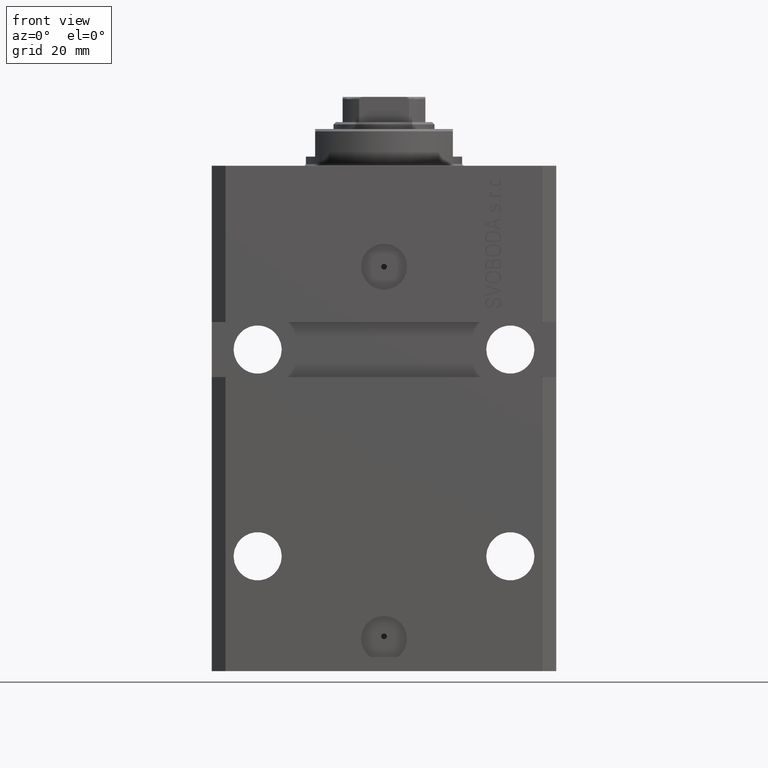
[diagram: clean part render]
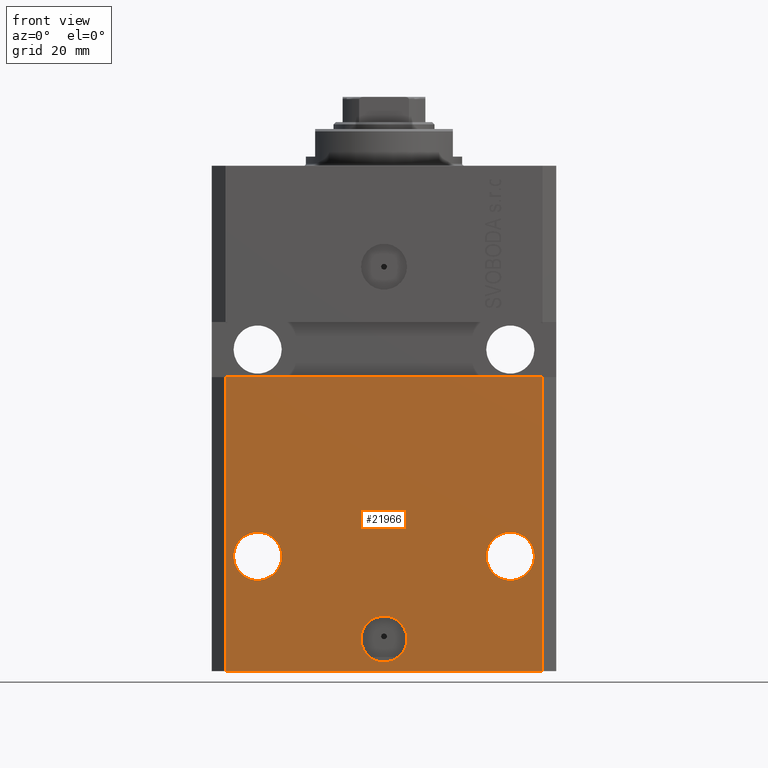
[diagram: same view with one face highlighted and labeled with its STEP entity id]
A machine part, front view. The second image highlights one B-rep face of the part: STEP entity #21966.
In plain terms, the highlighted planar face has unit normal (0, -1, 0).
Its self-contained STEP definition (entity closure, byte-faithful):
#1127 = CARTESIAN_POINT ( 'NONE',  ( 34.49999999999999289, -27.49999999999999645, -110.0000000000000000 ) ) ;
#1305 = EDGE_CURVE ( 'NONE', #7706, #33739, #4298, .T. ) ;
#2982 = EDGE_CURVE ( 'NONE', #16151, #41742, #40841, .T. ) ;
#3512 = CIRCLE ( 'NONE', #9687, 5.000000000000006217 ) ;
#4298 = LINE ( 'NONE', #7446, #38506 ) ;
#5130 = DIRECTION ( 'NONE',  ( 1.000000000000000000, 0.000000000000000000, 0.000000000000000000 ) ) ;
#5263 = AXIS2_PLACEMENT_3D ( 'NONE', #25104, #47135, #13948 ) ;
#5278 = CARTESIAN_POINT ( 'NONE',  ( -34.49999999999998579, -27.49999999999999645, -110.0000000000000000 ) ) ;
#5281 = EDGE_CURVE ( 'NONE', #46552, #11103, #43235, .T. ) ;
#5511 = DIRECTION ( 'NONE',  ( 0.000000000000000000, -0.000000000000000000, -1.000000000000000000 ) ) ;
#5534 = ORIENTED_EDGE ( 'NONE', *, *, #6598, .F. ) ;
#6596 = DIRECTION ( 'NONE',  ( 1.000000000000000000, 0.000000000000000000, 0.000000000000000000 ) ) ;
#6598 = EDGE_CURVE ( 'NONE', #43194, #17385, #13160, .T. ) ;
#7194 = EDGE_CURVE ( 'NONE', #41742, #33739, #31758, .T. ) ;
#7446 = CARTESIAN_POINT ( 'NONE',  ( -37.50000000000000000, -27.50000000000000000, -46.00000000000000000 ) ) ;
#7670 = CARTESIAN_POINT ( 'NONE',  ( -34.49999999999998579, -27.49999999999999645, -110.0000000000000000 ) ) ;
#7706 = VERTEX_POINT ( 'NONE', #40997 ) ;
#8498 = LINE ( 'NONE', #30529, #26517 ) ;
#8903 = FACE_BOUND ( 'NONE', #35179, .T. ) ;
#9141 = FACE_BOUND ( 'NONE', #16013, .T. ) ;
#9231 = CARTESIAN_POINT ( 'NONE',  ( 27.50000000000001421, -27.49999999999999289, -84.99999999999998579 ) ) ;
#9687 = AXIS2_PLACEMENT_3D ( 'NONE', #24046, #28144, #24282 ) ;
#10462 = DIRECTION ( 'NONE',  ( 1.000000000000000000, 0.000000000000000000, 0.000000000000000000 ) ) ;
#11103 = VERTEX_POINT ( 'NONE', #23924 ) ;
#12044 = ORIENTED_EDGE ( 'NONE', *, *, #13694, .F. ) ;
#13160 = CIRCLE ( 'NONE', #14711, 5.249999999999994671 ) ;
#13254 = FACE_OUTER_BOUND ( 'NONE', #16994, .T. ) ;
#13694 = EDGE_CURVE ( 'NONE', #16151, #7706, #8498, .T. ) ;
#13925 = ORIENTED_EDGE ( 'NONE', *, *, #1305, .F. ) ;
#13948 = DIRECTION ( 'NONE',  ( -1.000000000000000000, 0.000000000000000000, 0.000000000000000000 ) ) ;
#14178 = CARTESIAN_POINT ( 'NONE',  ( 5.000000000000006217, -27.49999999999999645, -103.0000000000000000 ) ) ;
#14352 = EDGE_CURVE ( 'NONE', #30492, #20409, #36489, .T. ) ;
#14470 = ORIENTED_EDGE ( 'NONE', *, *, #22418, .F. ) ;
#14711 = AXIS2_PLACEMENT_3D ( 'NONE', #19349, #45749, #27341 ) ;
#16013 = EDGE_LOOP ( 'NONE', ( #23703, #5534 ) ) ;
#16151 = VERTEX_POINT ( 'NONE', #43148 ) ;
#16182 = CARTESIAN_POINT ( 'NONE',  ( -22.25000000000002132, -27.50000000000000000, -84.99999999999998579 ) ) ;
#16994 = EDGE_LOOP ( 'NONE', ( #13925, #12044, #27611, #29526 ) ) ;
#17019 = CARTESIAN_POINT ( 'NONE',  ( 27.50000000000001421, -27.49999999999999289, -84.99999999999998579 ) ) ;
#17385 = VERTEX_POINT ( 'NONE', #16182 ) ;
#19060 = DIRECTION ( 'NONE',  ( 1.000000000000000000, 9.251858538542972814E-17, -9.251858538542972814E-17 ) ) ;
#19272 = ORIENTED_EDGE ( 'NONE', *, *, #5281, .F. ) ;
#19349 = CARTESIAN_POINT ( 'NONE',  ( -27.50000000000001421, -27.50000000000000000, -84.99999999999998579 ) ) ;
#20045 = AXIS2_PLACEMENT_3D ( 'NONE', #17019, #35664, #6596 ) ;
#20111 = VECTOR ( 'NONE', #46533, 1000.000000000000000 ) ;
#20409 = VERTEX_POINT ( 'NONE', #46900 ) ;
#20672 = CIRCLE ( 'NONE', #43103, 5.249999999999994671 ) ;
#21137 = DIRECTION ( 'NONE',  ( 1.176083712526788232E-16, -1.000000000000000000, 0.000000000000000000 ) ) ;
#21966 = ADVANCED_FACE ( 'NONE', ( #39172, #8903, #9141, #13254 ), #24167, .T. ) ;
#22418 = EDGE_CURVE ( 'NONE', #20409, #30492, #3512, .T. ) ;
#22456 = DIRECTION ( 'NONE',  ( 1.000000000000000000, 0.000000000000000000, 0.000000000000000000 ) ) ;
#23315 = EDGE_LOOP ( 'NONE', ( #32482, #14470 ) ) ;
#23703 = ORIENTED_EDGE ( 'NONE', *, *, #31416, .F. ) ;
#23924 = CARTESIAN_POINT ( 'NONE',  ( 22.25000000000002132, -27.49999999999999289, -84.99999999999998579 ) ) ;
#24046 = CARTESIAN_POINT ( 'NONE',  ( 0.000000000000000000, -27.49999999999999645, -103.0000000000000000 ) ) ;
#24167 = PLANE ( 'NONE',  #38293 ) ;
#24282 = DIRECTION ( 'NONE',  ( 1.000000000000000000, 0.000000000000000000, 0.000000000000000000 ) ) ;
#24632 = DIRECTION ( 'NONE',  ( 0.000000000000000000, -1.000000000000000000, 0.000000000000000000 ) ) ;
#25104 = CARTESIAN_POINT ( 'NONE',  ( -27.50000000000001421, -27.50000000000000000, -84.99999999999998579 ) ) ;
#25392 = ORIENTED_EDGE ( 'NONE', *, *, #33761, .F. ) ;
#26517 = VECTOR ( 'NONE', #38051, 1000.000000000000000 ) ;
#27341 = DIRECTION ( 'NONE',  ( -1.000000000000000000, 0.000000000000000000, 0.000000000000000000 ) ) ;
#27611 = ORIENTED_EDGE ( 'NONE', *, *, #2982, .T. ) ;
#28144 = DIRECTION ( 'NONE',  ( 1.176083712526788232E-16, -1.000000000000000000, 0.000000000000000000 ) ) ;
#29526 = ORIENTED_EDGE ( 'NONE', *, *, #7194, .T. ) ;
#30492 = VERTEX_POINT ( 'NONE', #14178 ) ;
#30529 = CARTESIAN_POINT ( 'NONE',  ( -34.49999999999998579, -27.49999999999999645, -110.0000000000000000 ) ) ;
#31067 = AXIS2_PLACEMENT_3D ( 'NONE', #38591, #21137, #10462 ) ;
#31416 = EDGE_CURVE ( 'NONE', #17385, #43194, #38520, .T. ) ;
#31633 = CARTESIAN_POINT ( 'NONE',  ( 32.75000000000000711, -27.49999999999999289, -84.99999999999998579 ) ) ;
#31758 = LINE ( 'NONE', #39271, #20111 ) ;
#32482 = ORIENTED_EDGE ( 'NONE', *, *, #14352, .F. ) ;
#33739 = VERTEX_POINT ( 'NONE', #38307 ) ;
#33761 = EDGE_CURVE ( 'NONE', #11103, #46552, #20672, .T. ) ;
#35179 = EDGE_LOOP ( 'NONE', ( #19272, #25392 ) ) ;
#35664 = DIRECTION ( 'NONE',  ( 1.176083712526788232E-16, -1.000000000000000000, 0.000000000000000000 ) ) ;
#36489 = CIRCLE ( 'NONE', #31067, 5.000000000000006217 ) ;
#38051 = DIRECTION ( 'NONE',  ( 0.000000000000000000, 0.000000000000000000, 1.000000000000000000 ) ) ;
#38293 = AXIS2_PLACEMENT_3D ( 'NONE', #5278, #24632, #5511 ) ;
#38307 = CARTESIAN_POINT ( 'NONE',  ( 34.49999999999999289, -27.49999999999999289, -46.00000000000000711 ) ) ;
#38506 = VECTOR ( 'NONE', #19060, 1000.000000000000000 ) ;
#38520 = CIRCLE ( 'NONE', #5263, 5.249999999999994671 ) ;
#38591 = CARTESIAN_POINT ( 'NONE',  ( 0.000000000000000000, -27.49999999999999645, -103.0000000000000000 ) ) ;
#39172 = FACE_BOUND ( 'NONE', #23315, .T. ) ;
#39271 = CARTESIAN_POINT ( 'NONE',  ( 34.49999999999999289, -27.49999999999999645, -110.0000000000000000 ) ) ;
#40769 = CARTESIAN_POINT ( 'NONE',  ( -32.75000000000000711, -27.50000000000000000, -84.99999999999998579 ) ) ;
#40841 = LINE ( 'NONE', #7670, #47808 ) ;
#40997 = CARTESIAN_POINT ( 'NONE',  ( -34.49999999999998579, -27.50000000000000000, -46.00000000000000000 ) ) ;
#41742 = VERTEX_POINT ( 'NONE', #1127 ) ;
#43103 = AXIS2_PLACEMENT_3D ( 'NONE', #9231, #45822, #5130 ) ;
#43148 = CARTESIAN_POINT ( 'NONE',  ( -34.49999999999998579, -27.49999999999999645, -110.0000000000000000 ) ) ;
#43194 = VERTEX_POINT ( 'NONE', #40769 ) ;
#43235 = CIRCLE ( 'NONE', #20045, 5.249999999999994671 ) ;
#45749 = DIRECTION ( 'NONE',  ( 1.176083712526788232E-16, -1.000000000000000000, 0.000000000000000000 ) ) ;
#45822 = DIRECTION ( 'NONE',  ( 1.176083712526788232E-16, -1.000000000000000000, 0.000000000000000000 ) ) ;
#46533 = DIRECTION ( 'NONE',  ( 0.000000000000000000, 0.000000000000000000, 1.000000000000000000 ) ) ;
#46552 = VERTEX_POINT ( 'NONE', #31633 ) ;
#46900 = CARTESIAN_POINT ( 'NONE',  ( -5.000000000000006217, -27.49999999999999645, -103.0000000000000000 ) ) ;
#47135 = DIRECTION ( 'NONE',  ( 1.176083712526788232E-16, -1.000000000000000000, 0.000000000000000000 ) ) ;
#47808 = VECTOR ( 'NONE', #22456, 1000.000000000000000 ) ;